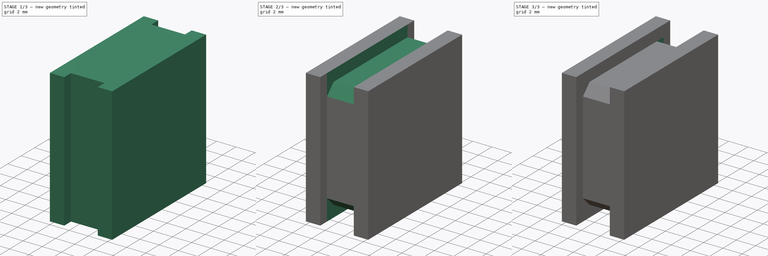
[diagram: build sequence overview — one tinted view per stage of 3, left to right]
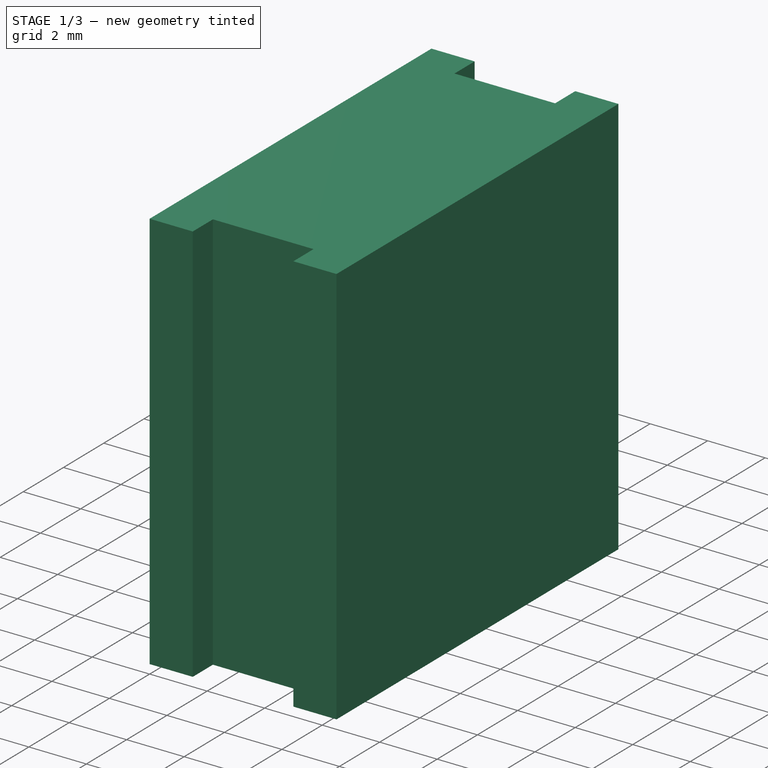
[diagram: stage 1 of 3 — iso view after this stage's code; geometry added in this stage tinted green]
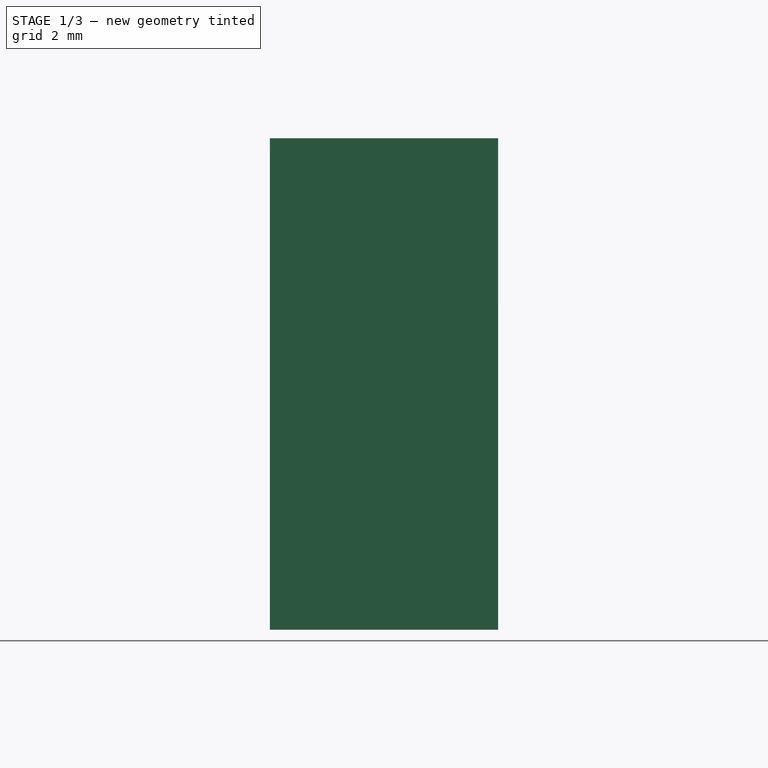
[diagram: stage 1 of 3 — front view after this stage's code; geometry added in this stage tinted green]
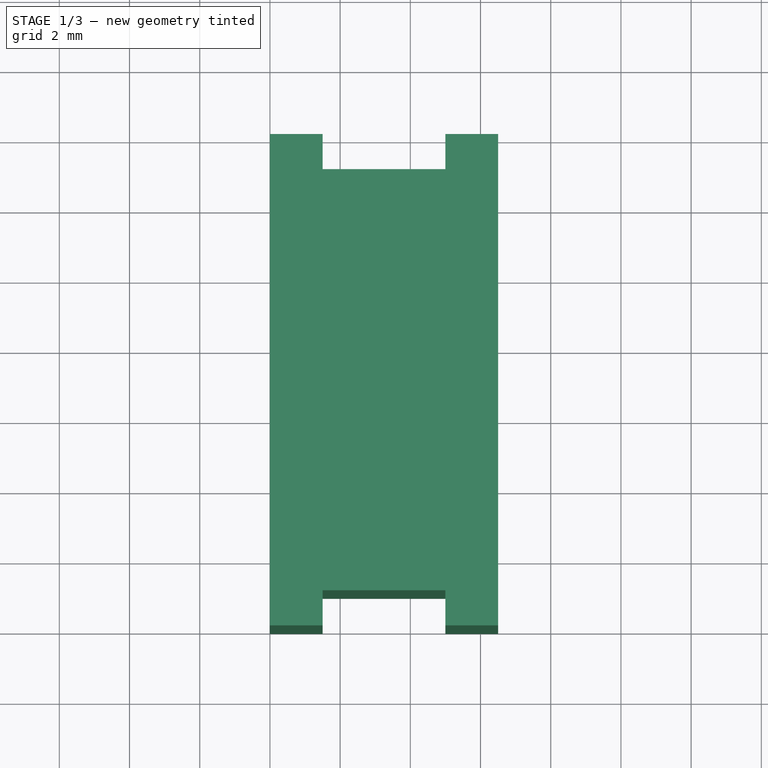
[diagram: stage 1 of 3 — top view after this stage's code; geometry added in this stage tinted green]
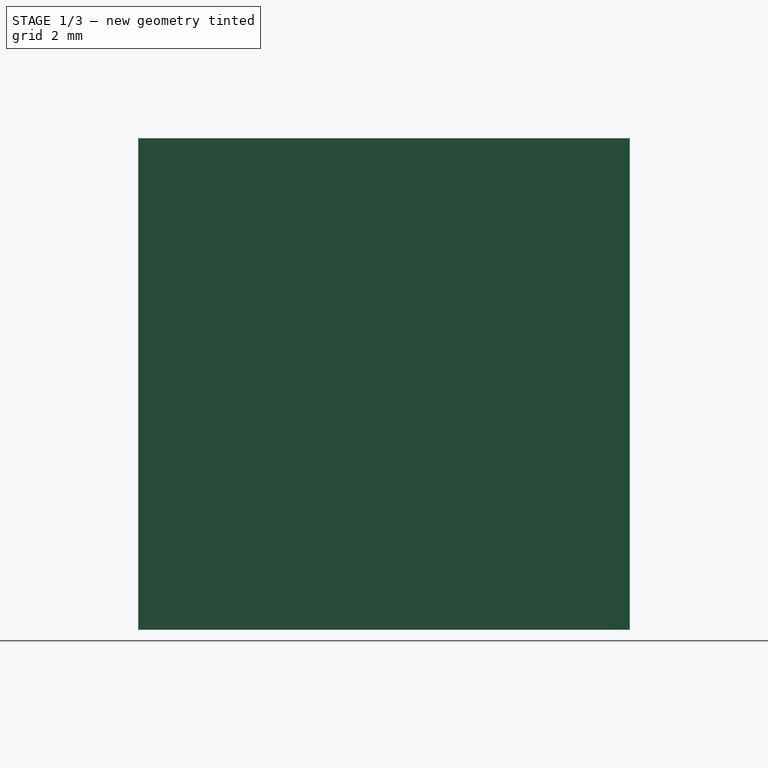
[diagram: stage 1 of 3 — right view after this stage's code; geometry added in this stage tinted green]
FCSTD DOCUMENT  (FreeCAD 0.16R)
Label: connector
License: All rights reserved
LicenseURL: http://en.wikipedia.org/wiki/All_rights_reserved
objects: PartDesign::Chamfer×4, Sketcher::SketchObject×2, PartDesign::Pocket×2, Part::Box×1
note: 11 computed .brp shape members not serialized (recipe doc carries the construction recipe); baked Part::Feature solids carry a one-line shape summary decoded from their .brp

FEATURE [Part::Box] Box  label="Куб"
  Height = 14
  Length = 6.5
  Width = 14
FEATURE [Sketcher::SketchObject] Sketch
  ExternalGeometry = -> [Box]
  Placement = pos=(0,0,14) rot=(0,0,1;0rad)
  Support = -> Box [Face6]
  sketch-geometry (8):
    g0: LineSegment StartX=1.5 StartY=14 StartZ=0 EndX=5 EndY=14 EndZ=0
    g1: LineSegment StartX=5 StartY=14 StartZ=0 EndX=5 EndY=13 EndZ=0
    g2: LineSegment StartX=5 StartY=13 StartZ=0 EndX=1.5 EndY=13 EndZ=0
    g3: LineSegment StartX=1.5 StartY=13 StartZ=0 EndX=1.5 EndY=14 EndZ=0
    g4: LineSegment StartX=1.5 StartY=1 StartZ=0 EndX=5 EndY=1 EndZ=0
    g5: LineSegment StartX=5 StartY=1 StartZ=0 EndX=5 EndY=0 EndZ=0
    g6: LineSegment StartX=5 StartY=0 StartZ=0 EndX=1.5 EndY=0 EndZ=0
    g7: LineSegment StartX=1.5 StartY=0 StartZ=0 EndX=1.5 EndY=1 EndZ=0
  constraints (24):
    c: Coincident(g0,g1)
    c: Coincident(g1,g2)
    c: Coincident(g2,g3)
    c: Coincident(g3,g0)
    c: Horizontal(g0)
    c: Horizontal(g2)
    c: Vertical(g1)
    c: Vertical(g3)
    c: PointOnObject(g0,g-5)
    c: DistanceY(g1,g0) = 1
    c: DistanceX(g-5,g0) = 1.5
    c: DistanceX(g0,g-5) = 1.5
    c: Coincident(g4,g5)
    c: Coincident(g5,g6)
    c: Coincident(g6,g7)
    c: Coincident(g7,g4)
    c: Horizontal(g4)
    c: Horizontal(g6)
    c: Vertical(g5)
    c: Vertical(g7)
    c: PointOnObject(g6,g-1)
    c: DistanceX(g5,g-3) = 1.5
    c: DistanceX(g-1,g6) = 1.5
    c: DistanceY(g5,g4) = 1
FEATURE [PartDesign::Pocket] Pocket
  Length = 14
  Sketch = -> Sketch
  Type = 0
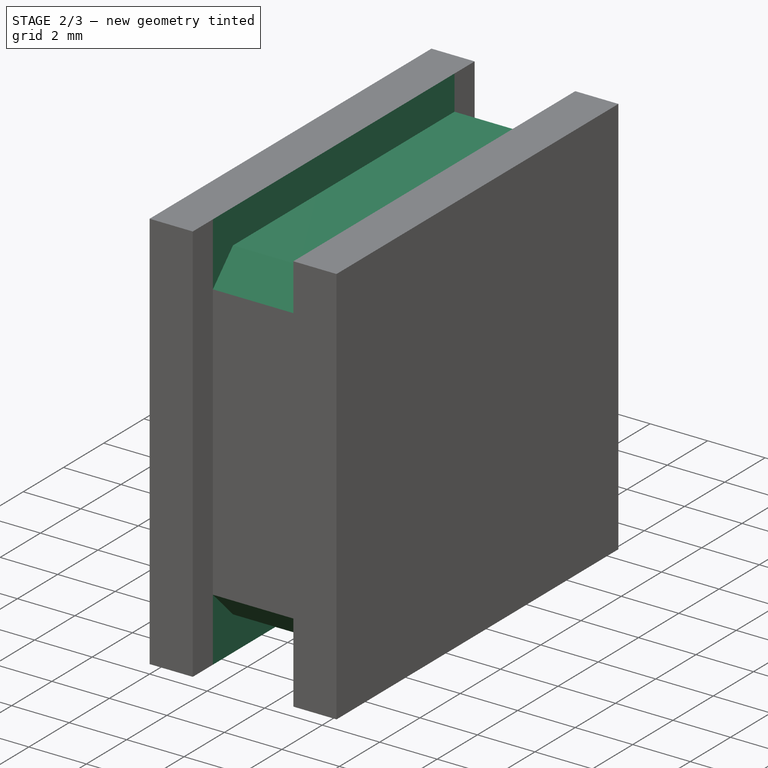
[diagram: stage 2 of 3 — iso view after this stage's code; geometry added in this stage tinted green]
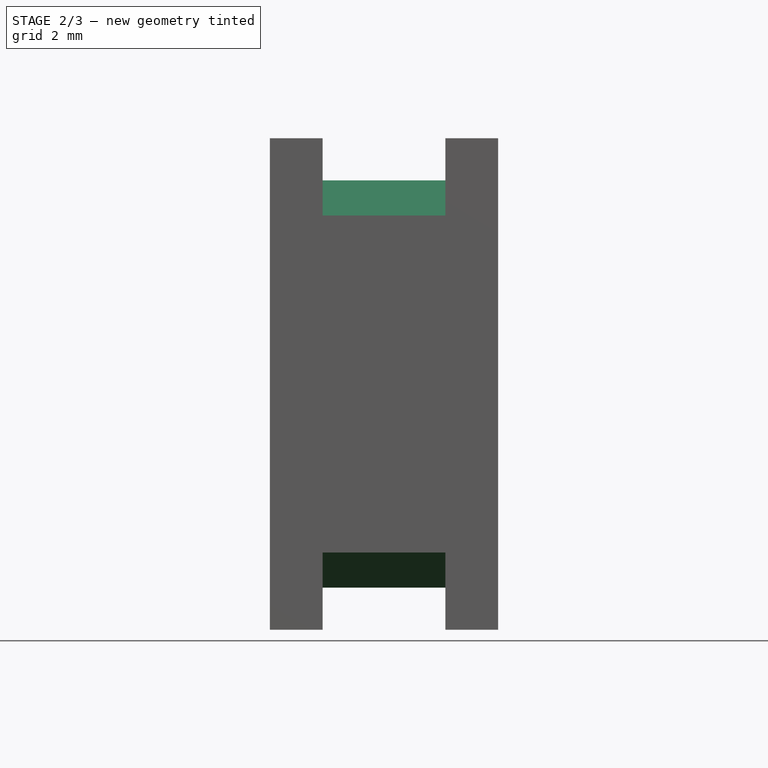
[diagram: stage 2 of 3 — front view after this stage's code; geometry added in this stage tinted green]
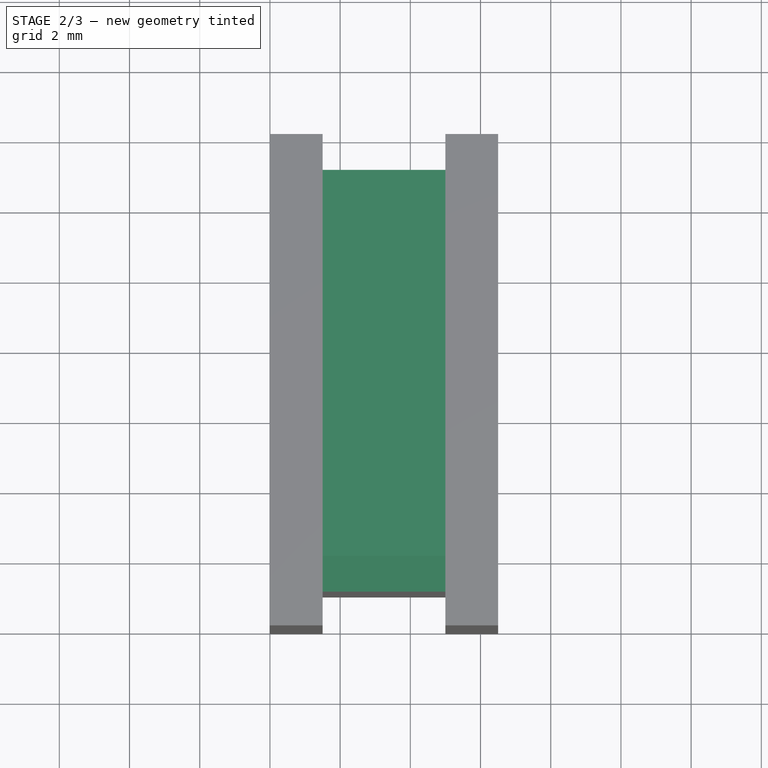
[diagram: stage 2 of 3 — top view after this stage's code; geometry added in this stage tinted green]
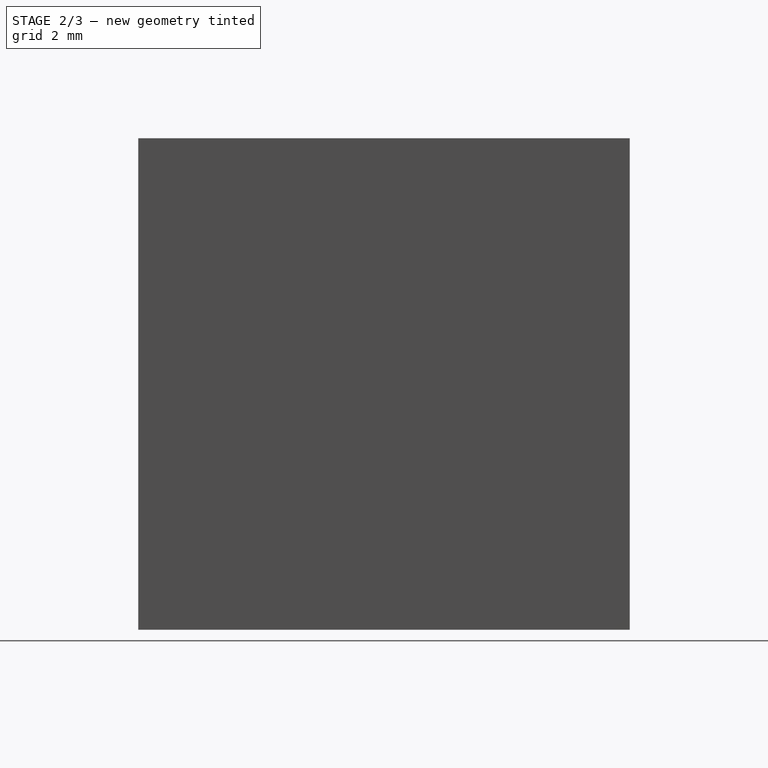
[diagram: stage 2 of 3 — right view after this stage's code; geometry added in this stage tinted green]
FEATURE [Sketcher::SketchObject] Sketch001
  ExternalGeometry = -> [Pocket]
  Placement = pos=(0,1,0) rot=(1,0,0;1.5708rad)
  Support = -> Pocket [Face14]
  sketch-geometry (8):
    g0: LineSegment StartX=1.5 StartY=14 StartZ=0 EndX=5 EndY=14 EndZ=0
    g1: LineSegment StartX=5 StartY=14 StartZ=0 EndX=5 EndY=12.8 EndZ=0
    g2: LineSegment StartX=5 StartY=12.8 StartZ=0 EndX=1.5 EndY=12.8 EndZ=0
    g3: LineSegment StartX=1.5 StartY=12.8 StartZ=0 EndX=1.5 EndY=14 EndZ=0
    g4: LineSegment StartX=1.5 StartY=1.2 StartZ=0 EndX=5 EndY=1.2 EndZ=0
    g5: LineSegment StartX=5 StartY=1.2 StartZ=0 EndX=5 EndY=0 EndZ=0
    g6: LineSegment StartX=5 StartY=0 StartZ=0 EndX=1.5 EndY=0 EndZ=0
    g7: LineSegment StartX=1.5 StartY=0 StartZ=0 EndX=1.5 EndY=1.2 EndZ=0
  constraints (23):
    c: Coincident(g0,g1)
    c: Coincident(g1,g2)
    c: Coincident(g2,g3)
    c: Coincident(g3,g0)
    c: Horizontal(g0)
    c: Horizontal(g2)
    c: Vertical(g1)
    c: Vertical(g3)
    c: PointOnObject(g0,g-3)
    c: Coincident(g-5,g0)
    c: Coincident(g0,g-4)
    c: DistanceY(g2,g0) = 1.2
    c: Coincident(g4,g5)
    c: Coincident(g5,g6)
    c: Coincident(g6,g7)
    c: Coincident(g7,g4)
    c: Horizontal(g4)
    c: Horizontal(g6)
    c: Vertical(g5)
    c: Vertical(g7)
    c: Coincident(g5,g-6)
    c: Coincident(g6,g-6)
    c: DistanceY(g6,g4) = 1.2
FEATURE [PartDesign::Pocket] Pocket001
  Length = 14
  Sketch = -> Sketch001
  Type = 0
FEATURE [PartDesign::Chamfer] Chamfer
  Base = -> Pocket001 [Edge29]
  Size = 1
FEATURE [PartDesign::Chamfer] Chamfer001
  Base = -> Chamfer [Edge10]
  Size = 1
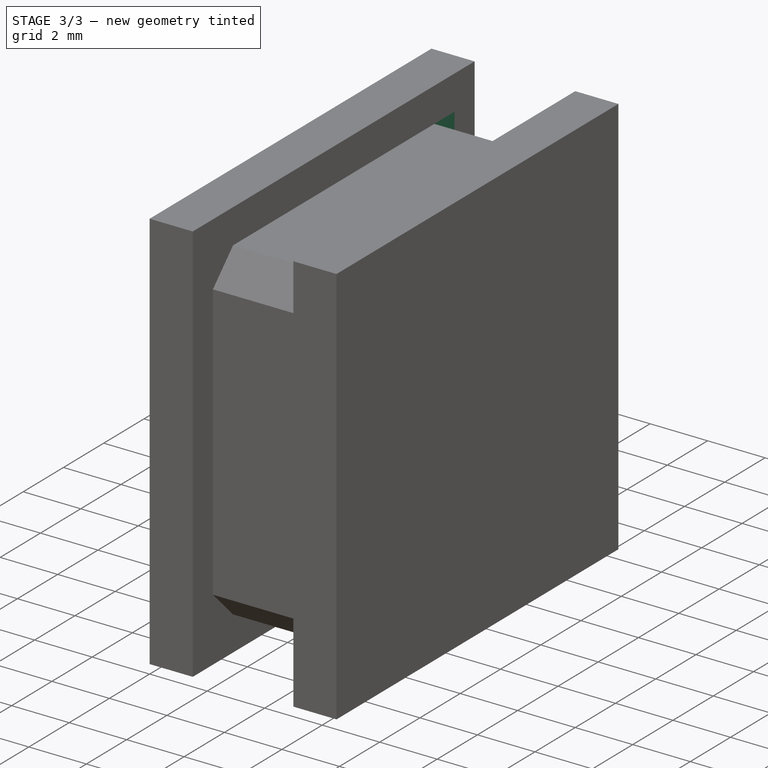
[diagram: stage 3 of 3 — iso view after this stage's code; geometry added in this stage tinted green]
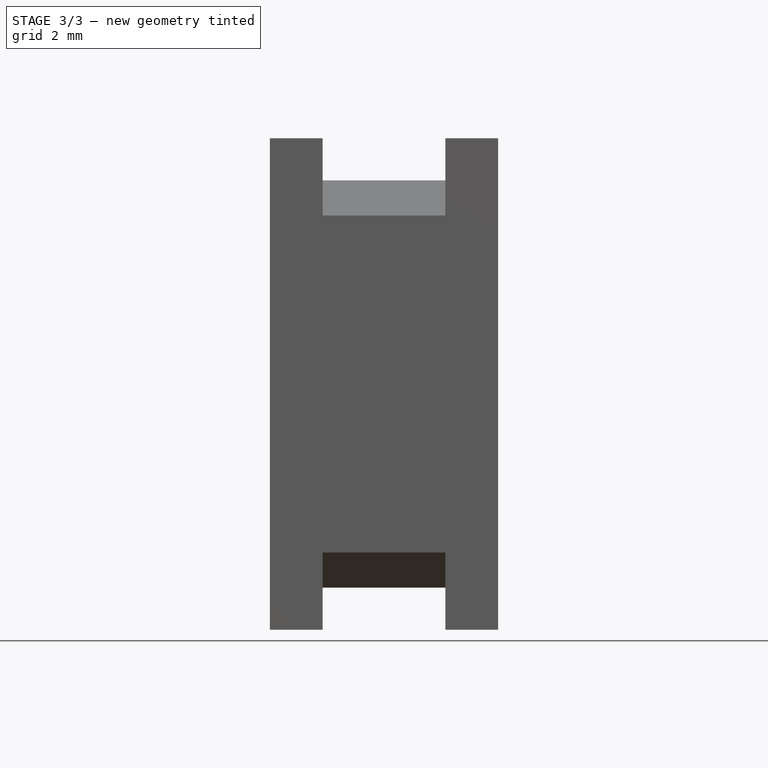
[diagram: stage 3 of 3 — front view after this stage's code; geometry added in this stage tinted green]
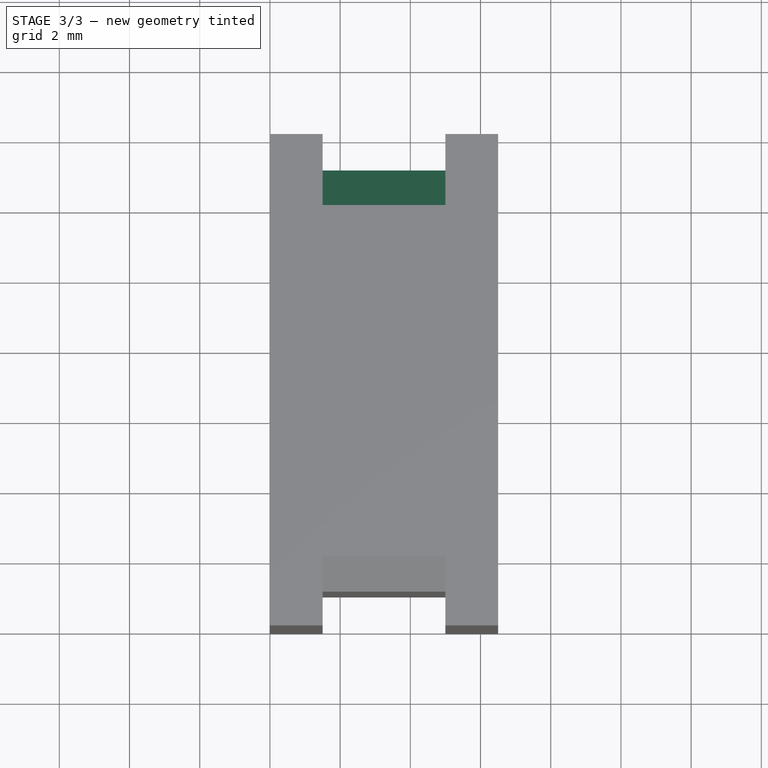
[diagram: stage 3 of 3 — top view after this stage's code; geometry added in this stage tinted green]
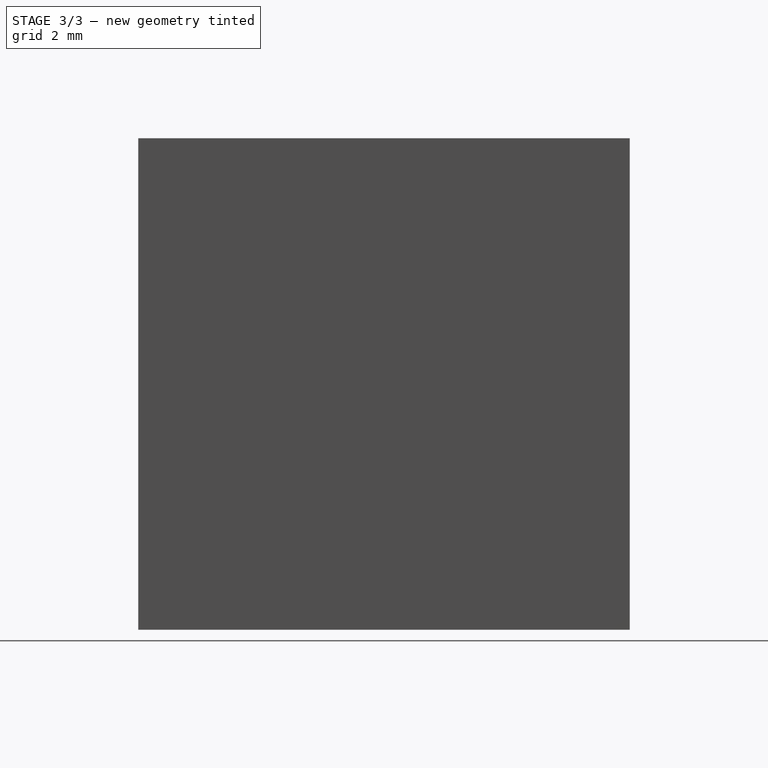
[diagram: stage 3 of 3 — right view after this stage's code; geometry added in this stage tinted green]
FEATURE [PartDesign::Chamfer] Chamfer002
  Base = -> Chamfer001 [Edge44]
  Size = 1
FEATURE [PartDesign::Chamfer] Chamfer003
  Base = -> Chamfer002 [Edge36]
  Size = 1
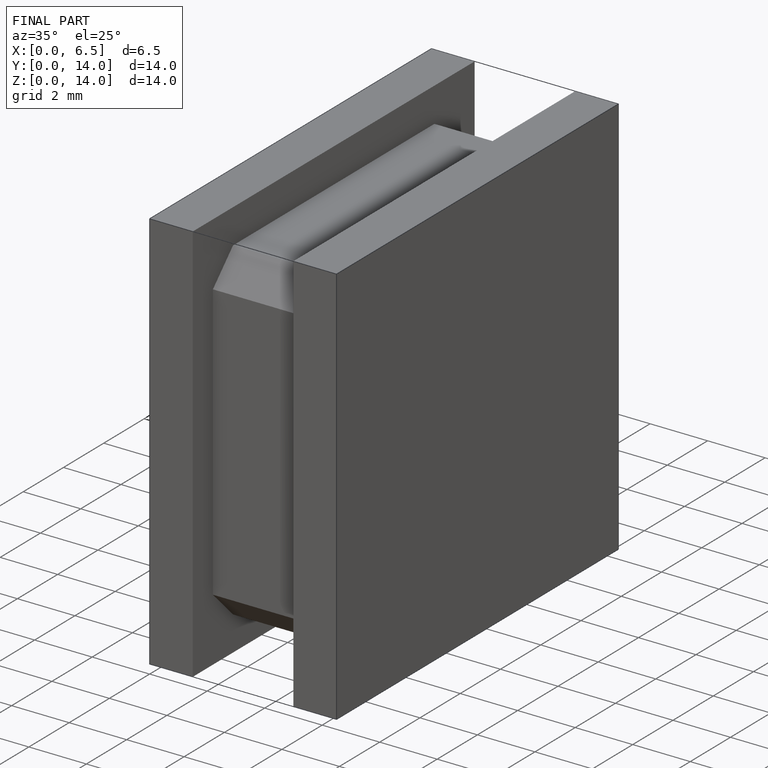
[diagram: finished part — iso view with bounding-box wireframe]
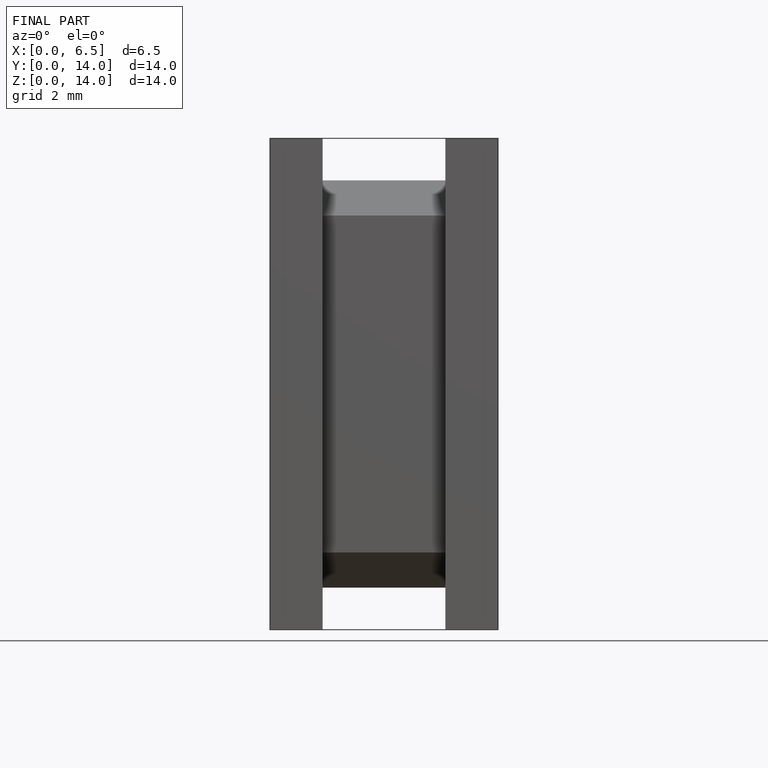
[diagram: finished part — front view with bounding-box wireframe]
